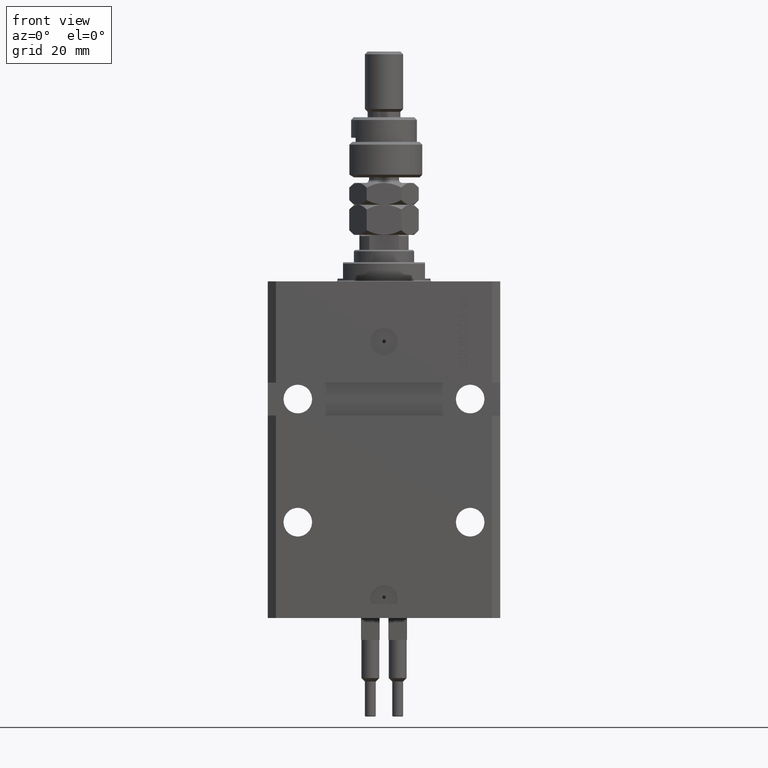
[diagram: clean part render]
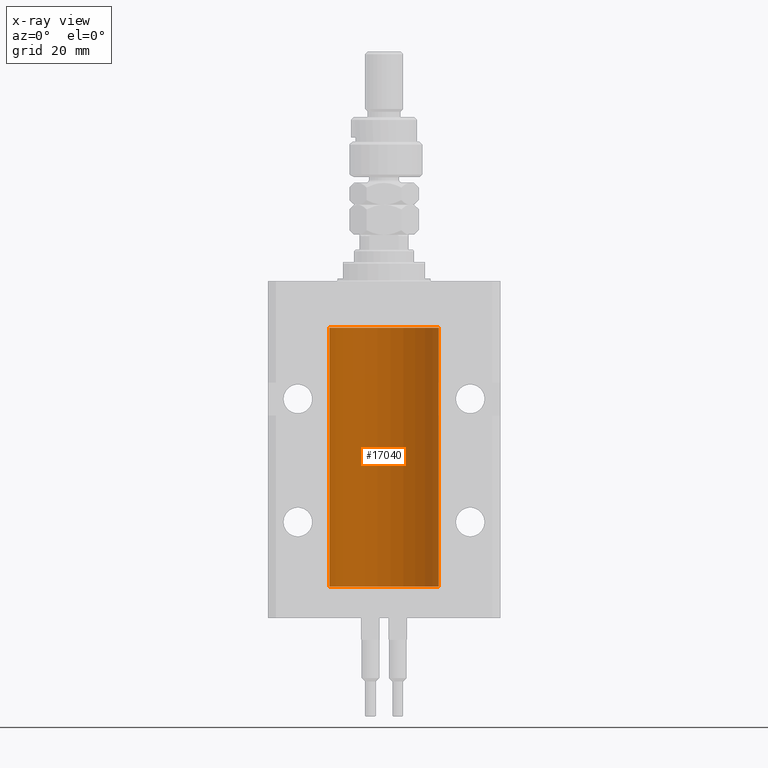
[diagram: x-ray — body ghosted, one internal face saturated and labeled with its STEP entity id]
A machine part, front view, then the same camera in x-ray: the body is ghosted and one INTERNAL B-rep face — a face not visible from any outside direction — is saturated and labeled: STEP entity #17040.
In plain terms, the highlighted cylindrical surface (partial cylindrical patch) has radius 20 mm, axis along (0, 0, 1).
Its self-contained STEP definition (entity closure, byte-faithful):
#309 = EDGE_CURVE ( 'NONE', #47429, #31375, #43311, .T. ) ;
#971 = VERTEX_POINT ( 'NONE', #7755 ) ;
#1147 = VERTEX_POINT ( 'NONE', #27925 ) ;
#1585 = CARTESIAN_POINT ( 'NONE',  ( 20.00000000000000000, 0.000000000000000000, -111.5999999999999943 ) ) ;
#1838 = VECTOR ( 'NONE', #4034, 1000.000000000000000 ) ;
#2234 = DIRECTION ( 'NONE',  ( 0.000000000000000000, 0.000000000000000000, 1.000000000000000000 ) ) ;
#2756 = ORIENTED_EDGE ( 'NONE', *, *, #7404, .T. ) ;
#2798 = CARTESIAN_POINT ( 'NONE',  ( -19.99023018003212471, 0.6250578794725500931, -24.16284809704970371 ) ) ;
#2817 = CARTESIAN_POINT ( 'NONE',  ( -20.00000000000000000, 2.449293598294706513E-15, -111.5999999999999943 ) ) ;
#3142 = VECTOR ( 'NONE', #35234, 1000.000000000000000 ) ;
#4034 = DIRECTION ( 'NONE',  ( -0.000000000000000000, -0.000000000000000000, 1.000000000000000000 ) ) ;
#5668 = VERTEX_POINT ( 'NONE', #28417 ) ;
#5706 = CARTESIAN_POINT ( 'NONE',  ( -19.99253506710754991, 0.5587120480776751608, -24.32511620830248589 ) ) ;
#5938 = CARTESIAN_POINT ( 'NONE',  ( 0.000000000000000000, 0.000000000000000000, -111.5999999999999943 ) ) ;
#5947 = CARTESIAN_POINT ( 'NONE',  ( -20.00000000000000000, 0.1631688615953320320, -24.62499999999985434 ) ) ;
#6711 = CARTESIAN_POINT ( 'NONE',  ( -19.99638934703457593, 0.3843678041337688644, -23.50046362978100944 ) ) ;
#7404 = EDGE_CURVE ( 'NONE', #37039, #971, #29944, .T. ) ;
#7709 = ORIENTED_EDGE ( 'NONE', *, *, #11181, .T. ) ;
#7755 = CARTESIAN_POINT ( 'NONE',  ( -20.00000000000010303, 3.580159278407742946E-13, -24.62500000000332889 ) ) ;
#8975 = VECTOR ( 'NONE', #33481, 1000.000000000000000 ) ;
#9138 = ORIENTED_EDGE ( 'NONE', *, *, #18389, .F. ) ;
#9870 = CARTESIAN_POINT ( 'NONE',  ( -19.99256581701871482, 0.5573276956902001311, -23.67348565770948809 ) ) ;
#10114 = CARTESIAN_POINT ( 'NONE',  ( -19.99023380173166231, 0.6249420416828462832, -23.83670793056396064 ) ) ;
#11181 = EDGE_CURVE ( 'NONE', #1147, #31375, #40686, .T. ) ;
#11293 = DIRECTION ( 'NONE',  ( -0.000000000000000000, -0.000000000000000000, 1.000000000000000000 ) ) ;
#11377 = CARTESIAN_POINT ( 'NONE',  ( 0.000000000000000000, 0.000000000000000000, -17.00000000000000000 ) ) ;
#12571 = CARTESIAN_POINT ( 'NONE',  ( -19.99766197842594906, 0.3150331617867563327, -108.4540207010250299 ) ) ;
#13260 = ORIENTED_EDGE ( 'NONE', *, *, #46042, .F. ) ;
#13539 = CARTESIAN_POINT ( 'NONE',  ( -19.99766197842594906, 0.3150331617867667688, -23.45402070102505476 ) ) ;
#14347 = CARTESIAN_POINT ( 'NONE',  ( -20.00000000000010303, 3.580159290815452135E-13, -109.6250000000033253 ) ) ;
#14500 = CARTESIAN_POINT ( 'NONE',  ( 0.000000000000000000, 0.000000000000000000, -111.5999999999999943 ) ) ;
#16496 = CARTESIAN_POINT ( 'NONE',  ( -19.99999999999999289, 0.08259581631025748882, -108.3749999999999716 ) ) ;
#16756 = CARTESIAN_POINT ( 'NONE',  ( -20.00000000000010303, 3.580159290815452135E-13, -109.6250000000033253 ) ) ;
#17040 = ADVANCED_FACE ( 'NONE', ( #48906 ), #29770, .F. ) ;
#17097 = CARTESIAN_POINT ( 'NONE',  ( -20.00000000000000000, -2.867584836844214272E-15, -23.37500000000000000 ) ) ;
#18389 = EDGE_CURVE ( 'NONE', #5668, #47429, #42368, .T. ) ;
#19271 = ORIENTED_EDGE ( 'NONE', *, *, #44847, .T. ) ;
#19472 = VERTEX_POINT ( 'NONE', #27844 ) ;
#20434 = CARTESIAN_POINT ( 'NONE',  ( -19.99023380173165876, 0.6249420416828411762, -108.8367079305639322 ) ) ;
#20737 = EDGE_LOOP ( 'NONE', ( #33782, #9138, #19271, #25089, #13260, #2756, #47769, #7709 ) ) ;
#22688 = LINE ( 'NONE', #2817, #3142 ) ;
#23680 = AXIS2_PLACEMENT_3D ( 'NONE', #11377, #28141, #31788 ) ;
#24097 = CARTESIAN_POINT ( 'NONE',  ( -19.99023018003212471, 0.6250578794725484277, -109.1628480970496895 ) ) ;
#25066 = DIRECTION ( 'NONE',  ( 1.000000000000000000, 0.000000000000000000, 0.000000000000000000 ) ) ;
#25089 = ORIENTED_EDGE ( 'NONE', *, *, #33363, .T. ) ;
#25843 = CARTESIAN_POINT ( 'NONE',  ( -20.00000000000010303, 3.580159278407742946E-13, -24.62500000000332889 ) ) ;
#26767 = CARTESIAN_POINT ( 'NONE',  ( -20.00000000000000000, 2.449293598294706513E-15, -111.5999999999999943 ) ) ;
#27844 = CARTESIAN_POINT ( 'NONE',  ( -20.00000000000000000, 2.449293598294706513E-15, -17.00000000000000000 ) ) ;
#27850 = CARTESIAN_POINT ( 'NONE',  ( -20.00000000000000000, 2.449293598294706513E-15, -111.5999999999999943 ) ) ;
#27925 = CARTESIAN_POINT ( 'NONE',  ( -20.00000000000000000, -1.494965790691426527E-14, -108.3750000000000000 ) ) ;
#28141 = DIRECTION ( 'NONE',  ( 0.000000000000000000, 0.000000000000000000, 1.000000000000000000 ) ) ;
#28169 = AXIS2_PLACEMENT_3D ( 'NONE', #14500, #2234, #30489 ) ;
#28417 = CARTESIAN_POINT ( 'NONE',  ( 20.00000000000000000, 0.000000000000000000, -111.5999999999999943 ) ) ;
#29770 = CYLINDRICAL_SURFACE ( 'NONE', #47295, 20.00000000000000000 ) ;
#29944 = B_SPLINE_CURVE_WITH_KNOTS ( 'NONE', 3,
 ( #49427, #45749, #38126, #13539, #6711, #9870, #10114, #2798, #5706, #41573, #5947, #25843 ),
 .UNSPECIFIED., .F., .F.,
 ( 4, 2, 2, 2, 2, 4 ),
 ( 5.848927291235706941E-19, 0.0002442693137305304075, 0.0004885386274610601645, 0.0009770772549221123059, 0.001465615882383164339, 0.001954154509844215938 ),
 .UNSPECIFIED. ) ;
#30489 = DIRECTION ( 'NONE',  ( 1.000000000000000000, 0.000000000000000000, 0.000000000000000000 ) ) ;
#31375 = VERTEX_POINT ( 'NONE', #14347 ) ;
#31788 = DIRECTION ( 'NONE',  ( 1.000000000000000000, 0.000000000000000000, 0.000000000000000000 ) ) ;
#32471 = CARTESIAN_POINT ( 'NONE',  ( -20.00000000000000000, -1.494965790691426527E-14, -108.3750000000000000 ) ) ;
#32707 = LINE ( 'NONE', #1585, #8975 ) ;
#33363 = EDGE_CURVE ( 'NONE', #42153, #19472, #47917, .T. ) ;
#33481 = DIRECTION ( 'NONE',  ( -0.000000000000000000, -0.000000000000000000, 1.000000000000000000 ) ) ;
#33782 = ORIENTED_EDGE ( 'NONE', *, *, #309, .F. ) ;
#35234 = DIRECTION ( 'NONE',  ( -0.000000000000000000, -0.000000000000000000, 1.000000000000000000 ) ) ;
#35327 = CARTESIAN_POINT ( 'NONE',  ( 20.00000000000000000, 0.000000000000000000, -17.00000000000000000 ) ) ;
#36392 = CARTESIAN_POINT ( 'NONE',  ( -20.00000000000000355, 0.1631688615953337806, -109.6249999999998721 ) ) ;
#36919 = CARTESIAN_POINT ( 'NONE',  ( -19.99947377218718358, 0.1636439183262759223, -108.3912636400465459 ) ) ;
#37039 = VERTEX_POINT ( 'NONE', #17097 ) ;
#37864 = DIRECTION ( 'NONE',  ( -0.000000000000000000, -0.000000000000000000, 1.000000000000000000 ) ) ;
#38126 = CARTESIAN_POINT ( 'NONE',  ( -19.99947377218718714, 0.1636439183262877461, -23.39126364004656011 ) ) ;
#38797 = LINE ( 'NONE', #39299, #39953 ) ;
#39299 = CARTESIAN_POINT ( 'NONE',  ( -20.00000000000000000, 2.449293598294706513E-15, -111.5999999999999943 ) ) ;
#39953 = VECTOR ( 'NONE', #11293, 1000.000000000000000 ) ;
#40069 = CARTESIAN_POINT ( 'NONE',  ( -19.99769349528941476, 0.3253804398728720182, -109.5585582072768318 ) ) ;
#40327 = CARTESIAN_POINT ( 'NONE',  ( -19.99256581701871838, 0.5573276956901952461, -108.6734856577094916 ) ) ;
#40686 = B_SPLINE_CURVE_WITH_KNOTS ( 'NONE', 3,
 ( #32471, #16496, #36919, #12571, #44002, #40327, #20434, #24097, #40866, #40069, #36392, #16756 ),
 .UNSPECIFIED., .F., .F.,
 ( 4, 2, 2, 2, 2, 4 ),
 ( 1.555867690894744095E-18, 0.0002442693137305176681, 0.0004885386274610337099, 0.0009770772549220949586, 0.001465615882383156099, 0.001954154509844217673 ),
 .UNSPECIFIED. ) ;
#40866 = CARTESIAN_POINT ( 'NONE',  ( -19.99253506710754991, 0.5587120480776772702, -109.3251162083024894 ) ) ;
#41573 = CARTESIAN_POINT ( 'NONE',  ( -19.99769349528941120, 0.3253804398728645242, -24.55855820727680339 ) ) ;
#42153 = VERTEX_POINT ( 'NONE', #35327 ) ;
#42368 = CIRCLE ( 'NONE', #28169, 20.00000000000000000 ) ;
#43311 = LINE ( 'NONE', #27850, #1838 ) ;
#44002 = CARTESIAN_POINT ( 'NONE',  ( -19.99638934703457593, 0.3843678041337614260, -108.5004636297810094 ) ) ;
#44847 = EDGE_CURVE ( 'NONE', #5668, #42153, #32707, .T. ) ;
#45749 = CARTESIAN_POINT ( 'NONE',  ( -19.99999999999999645, 0.08259581631026780002, -23.37500000000000000 ) ) ;
#46042 = EDGE_CURVE ( 'NONE', #37039, #19472, #22688, .T. ) ;
#46629 = EDGE_CURVE ( 'NONE', #1147, #971, #38797, .T. ) ;
#47295 = AXIS2_PLACEMENT_3D ( 'NONE', #5938, #37864, #25066 ) ;
#47429 = VERTEX_POINT ( 'NONE', #26767 ) ;
#47769 = ORIENTED_EDGE ( 'NONE', *, *, #46629, .F. ) ;
#47917 = CIRCLE ( 'NONE', #23680, 20.00000000000000000 ) ;
#48906 = FACE_OUTER_BOUND ( 'NONE', #20737, .T. ) ;
#49427 = CARTESIAN_POINT ( 'NONE',  ( -20.00000000000000000, -2.867584836844214272E-15, -23.37500000000000000 ) ) ;